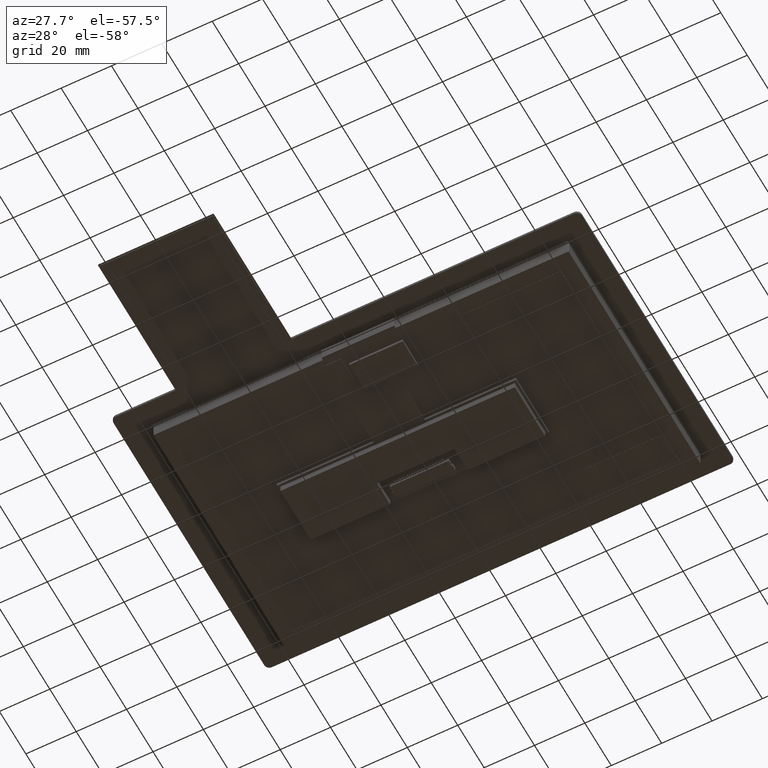
[diagram: clean part render]
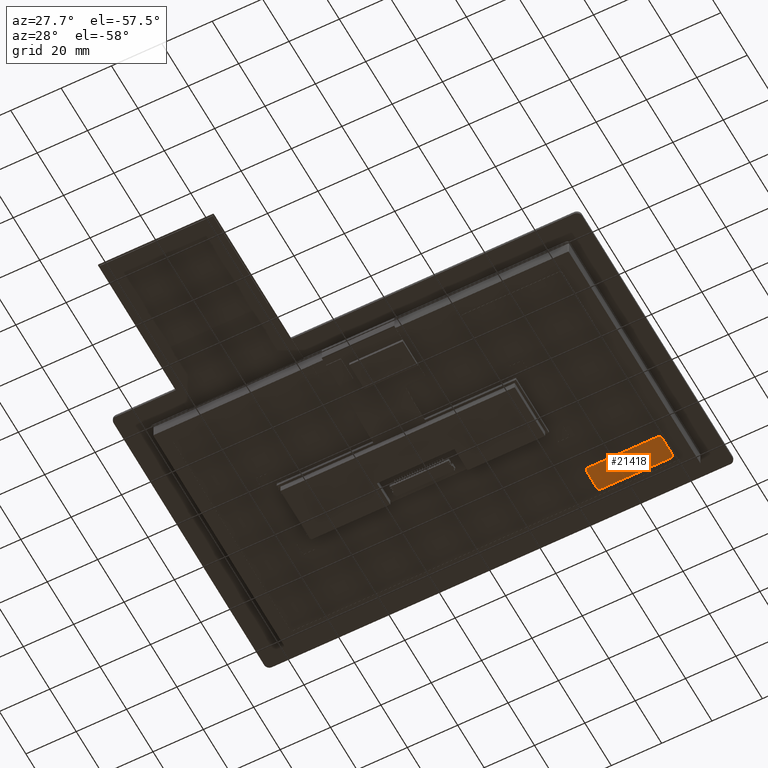
[diagram: same view with one face highlighted and labeled with its STEP entity id]
A machine part, auxiliary view. The second image highlights one B-rep face of the part: STEP entity #21418.
In plain terms, the highlighted planar face has unit normal (0, 0, 1).
Its self-contained STEP definition (entity closure, byte-faithful):
#149=CIRCLE('',#22609,1.);
#151=CIRCLE('',#22613,1.00000000000003);
#153=CIRCLE('',#22617,0.999999999999999);
#155=CIRCLE('',#22621,0.999999999999976);
#915=FACE_OUTER_BOUND('',#2068,.T.);
#2068=EDGE_LOOP('',(#14599,#14600,#14601,#14602,#14603,#14604,#14605,#14606));
#3445=LINE('',#30670,#6190);
#3449=LINE('',#30682,#6194);
#3453=LINE('',#30694,#6198);
#3456=LINE('',#30703,#6201);
#6190=VECTOR('',#24654,1000.);
#6194=VECTOR('',#24666,1000.);
#6198=VECTOR('',#24678,1000.);
#6201=VECTOR('',#24689,1000.);
#8866=VERTEX_POINT('',#30660);
#8867=VERTEX_POINT('',#30662);
#8869=VERTEX_POINT('',#30668);
#8871=VERTEX_POINT('',#30674);
#8873=VERTEX_POINT('',#30680);
#8875=VERTEX_POINT('',#30686);
#8877=VERTEX_POINT('',#30692);
#8879=VERTEX_POINT('',#30698);
#11065=EDGE_CURVE('',#8866,#8867,#149,.T.);
#11069=EDGE_CURVE('',#8869,#8866,#3445,.T.);
#11072=EDGE_CURVE('',#8871,#8869,#151,.T.);
#11075=EDGE_CURVE('',#8873,#8871,#3449,.T.);
#11078=EDGE_CURVE('',#8875,#8873,#153,.T.);
#11081=EDGE_CURVE('',#8877,#8875,#3453,.T.);
#11084=EDGE_CURVE('',#8879,#8877,#155,.T.);
#11086=EDGE_CURVE('',#8867,#8879,#3456,.T.);
#14599=ORIENTED_EDGE('',*,*,#11065,.F.);
#14600=ORIENTED_EDGE('',*,*,#11069,.F.);
#14601=ORIENTED_EDGE('',*,*,#11072,.F.);
#14602=ORIENTED_EDGE('',*,*,#11075,.F.);
#14603=ORIENTED_EDGE('',*,*,#11078,.F.);
#14604=ORIENTED_EDGE('',*,*,#11081,.F.);
#14605=ORIENTED_EDGE('',*,*,#11084,.F.);
#14606=ORIENTED_EDGE('',*,*,#11086,.F.);
#20480=PLANE('',#22623);
#21418=ADVANCED_FACE('',(#915),#20480,.F.);
#22609=AXIS2_PLACEMENT_3D('',#30663,#24647,#24648);
#22613=AXIS2_PLACEMENT_3D('',#30676,#24660,#24661);
#22617=AXIS2_PLACEMENT_3D('',#30688,#24672,#24673);
#22621=AXIS2_PLACEMENT_3D('',#30700,#24684,#24685);
#22623=AXIS2_PLACEMENT_3D('',#30704,#24690,#24691);
#24647=DIRECTION('center_axis',(0.,0.,1.));
#24648=DIRECTION('ref_axis',(1.,0.,0.));
#24654=DIRECTION('',(0.,1.,0.));
#24660=DIRECTION('center_axis',(0.,0.,1.));
#24661=DIRECTION('ref_axis',(1.,0.,0.));
#24666=DIRECTION('',(1.,0.,0.));
#24672=DIRECTION('center_axis',(0.,0.,1.));
#24673=DIRECTION('ref_axis',(1.,0.,0.));
#24678=DIRECTION('',(0.,-1.,0.));
#24684=DIRECTION('center_axis',(0.,0.,1.));
#24685=DIRECTION('ref_axis',(1.,0.,0.));
#24689=DIRECTION('',(-1.,0.,0.));
#24690=DIRECTION('center_axis',(0.,0.,1.));
#24691=DIRECTION('ref_axis',(1.,0.,0.));
#30660=CARTESIAN_POINT('',(77.015,39.64,-8.22500000000004));
#30662=CARTESIAN_POINT('',(76.015,40.64,-8.22500000000004));
#30663=CARTESIAN_POINT('Origin',(76.015,39.64,-8.22500000000004));
#30668=CARTESIAN_POINT('',(77.015,31.64,-8.22500000000004));
#30670=CARTESIAN_POINT('',(77.015,39.64,-8.22500000000004));
#30674=CARTESIAN_POINT('',(76.015,30.64,-8.22500000000004));
#30676=CARTESIAN_POINT('Origin',(76.015,31.64,-8.22500000000004));
#30680=CARTESIAN_POINT('',(48.015,30.64,-8.22500000000004));
#30682=CARTESIAN_POINT('',(76.015,30.64,-8.22500000000004));
#30686=CARTESIAN_POINT('',(47.015,31.64,-8.22500000000004));
#30688=CARTESIAN_POINT('Origin',(48.015,31.64,-8.22500000000004));
#30692=CARTESIAN_POINT('',(47.015,39.64,-8.22500000000004));
#30694=CARTESIAN_POINT('',(47.015,31.64,-8.22500000000004));
#30698=CARTESIAN_POINT('',(48.015,40.64,-8.22500000000004));
#30700=CARTESIAN_POINT('Origin',(48.015,39.64,-8.22500000000004));
#30703=CARTESIAN_POINT('',(48.015,40.64,-8.22500000000004));
#30704=CARTESIAN_POINT('Origin',(76.015,39.64,-8.22500000000004));